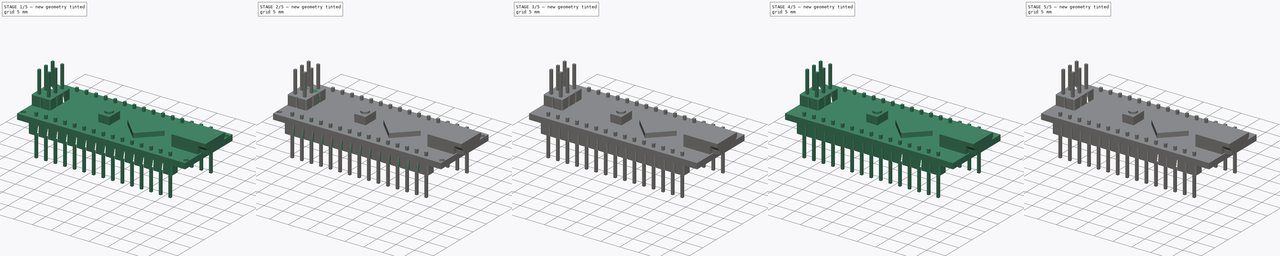
[diagram: build sequence overview — one tinted view per stage of 5, left to right]
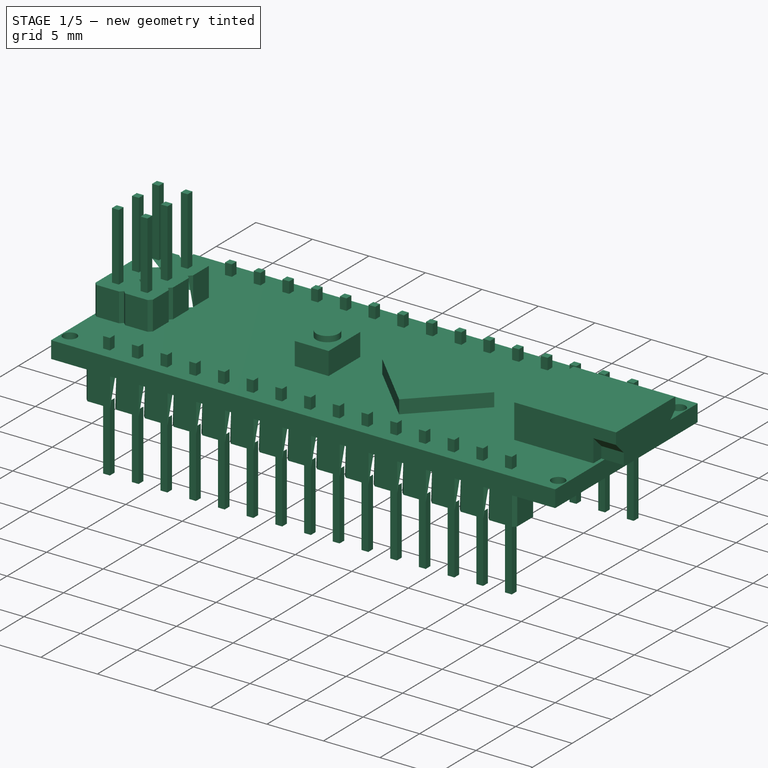
[diagram: stage 1 of 5 — iso view after this stage's code; geometry added in this stage tinted green]
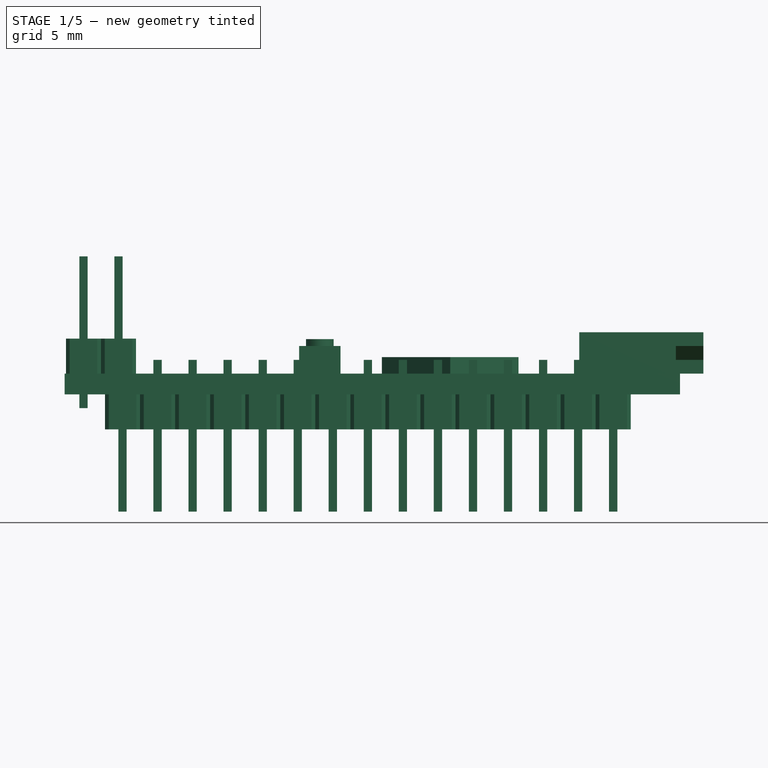
[diagram: stage 1 of 5 — front view after this stage's code; geometry added in this stage tinted green]
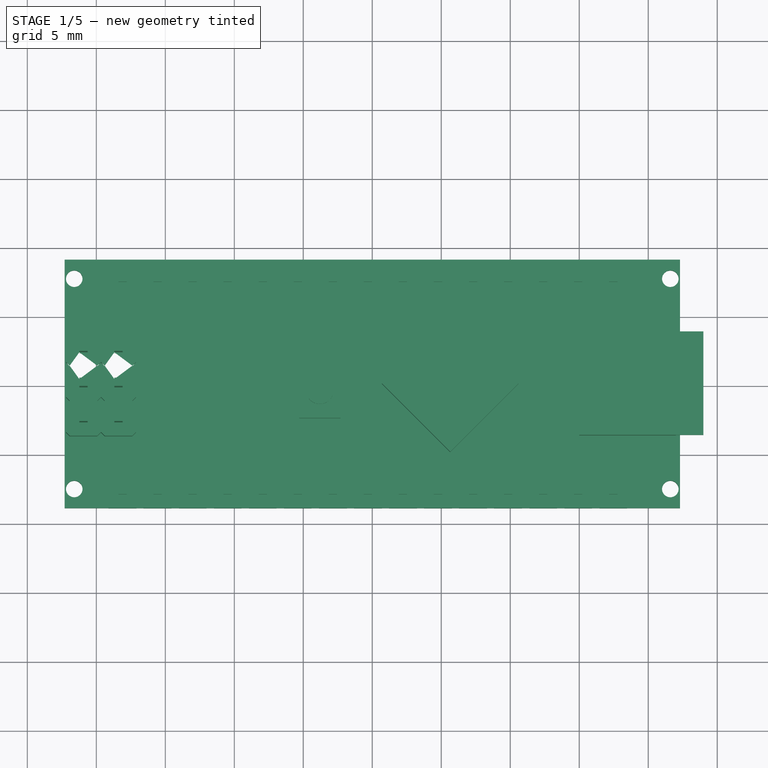
[diagram: stage 1 of 5 — top view after this stage's code; geometry added in this stage tinted green]
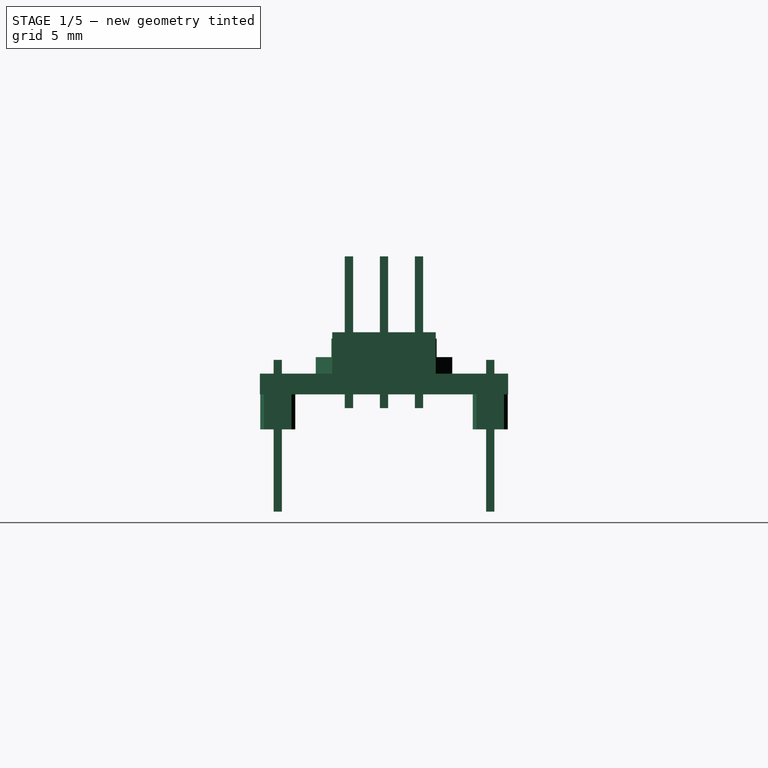
[diagram: stage 1 of 5 — right view after this stage's code; geometry added in this stage tinted green]
FCSTD DOCUMENT  (FreeCAD 1.0R38641 +678 (Git))
Label: arduino_Nano-Rev3_0
License: All rights reserved
LicenseURL: http://en.wikipedia.org/wiki/All_rights_reserved
objects: Sketcher::SketchObject×13, PartDesign::Pad×12, Part::MultiFuse×7, Part::Feature×5, Part::Fuse×4, Part::FeaturePython×3, PartDesign::FeatureBase×1, PartDesign::Pocket×1, PartDesign::Body×1
note: 87 computed .brp shape members not serialized (recipe doc carries the construction recipe); baked Part::Feature solids carry a one-line shape summary decoded from their .brp

FEATURE [Part::Feature] Fusion007
  shape: bbox 2.54 x 2.54 x 11 mm, 20 faces (baked)
FEATURE [Part::FeaturePython] Array002  # Draft array (typed FeaturePython)
  Angle = 360
  ArrayType = 0
  Axis = (0,0,1)
  Base = -> Fusion007
  Center = (0,0,0)
  Count = 15
  Fuse = false
  IntervalAxis = (0,0,0)
  IntervalX = (2.54,0,0)
  IntervalY = (0,1,0)
  IntervalZ = (0,0,0)
  NumberPolar = 1
  NumberX = 15
  NumberY = 0
  NumberZ = 1
FEATURE [Sketcher::SketchObject] Sketch010  label="Btn2"
  ArcFitTolerance = 0
  AttachmentSupport = -> [Pad009]
  FullyConstrained = true
  MakeInternals = false
  MapMode = 5
  Placement = pos=(0,0,3.5) rot=(0,0,1;0rad)
  sketch-geometry (1):
    g0: Circle CenterX=-3.8 CenterY=-0.5 CenterZ=0 NormalX=0 NormalY=0 NormalZ=1 AngleXU=0 Radius=1
  constraints (3):
    c: DistanceY(g-1,g0) = -0.5
    c: DistanceX(g-1,g0) = -3.8
    c: Radius(g0) = 1
FEATURE [PartDesign::Pad] Pad010
  AllowMultiFace = false
  Direction = (0,0,1)
  Length = 0.5
  Length2 = 100
  Placement = pos=(0,0,1.5) rot=(0,0,1;0rad)
  Profile = -> Sketch010
  Refine = true
  Suppressed = false
  Type = 0
FEATURE [Sketcher::SketchObject] Sketch011  label="Ci"
  ArcFitTolerance = 0
  FullyConstrained = true
  MakeInternals = false
  MapMode = 5
  Placement = pos=(0,0,1.5) rot=(0,0,1;0rad)
  sketch-geometry (4):
    g0: LineSegment StartX=5.64975 StartY=4.94975 StartZ=0 EndX=0.7 EndY=0 EndZ=0
    g1: LineSegment StartX=0.7 StartY=0 StartZ=0 EndX=5.64975 EndY=-4.94975 EndZ=0
    g2: LineSegment StartX=5.64975 StartY=-4.94975 StartZ=0 EndX=10.5995 EndY=0 EndZ=0
    g3: LineSegment StartX=10.5995 StartY=0 StartZ=0 EndX=5.64975 EndY=4.94975 EndZ=0
  constraints (11):
    c: Coincident(g0,g1)
    c: Coincident(g1,g2)
    c: Coincident(g2,g3)
    c: Perpendicular(g0,g3) = 4.71239
    c: Perpendicular(g2,g3) = 1.5708
    c: Perpendicular(g1,g2) = 1.5708
    c: Distance(g3) = 7
    c: Distance(g2) = 7
    c: PointOnObject(g0,g-1)
    c: PointOnObject(g2,g-1)
    c: DistanceX(g-1,g0) = 0.7
FEATURE [PartDesign::Pad] Pad011
  AllowMultiFace = false
  Direction = (0,0,1)
  Length = 1.2
  Length2 = 100
  Placement = pos=(0,0,1.5) rot=(0,0,1;0rad)
  Profile = -> Sketch011
  Refine = true
  Suppressed = false
  Type = 0
FEATURE [Part::MultiFuse] Fusion008
  Refine = true
  Shapes = -> [Pad011,Pad010]
FEATURE [Part::Feature] Fusion015
  shape: bbox 46.3 x 18 x 18.5 mm, 701 faces (baked)
FEATURE [PartDesign::FeatureBase] BaseFeature
  BaseFeature = -> Fusion015
  Suppressed = false
FEATURE [Sketcher::SketchObject] Sketch012
  ArcFitTolerance = 1e-06
  AttachmentSupport = -> [BaseFeature]
  FullyConstrained = true
  MakeInternals = false
  MapMode = 5
  Placement = pos=(0,0,1.5) rot=(0,0,1;0rad)
  sketch-geometry (4):
    g0: Circle CenterX=-21.6 CenterY=7.62 CenterZ=0 NormalX=0 NormalY=0 NormalZ=1 AngleXU=0 Radius=0.6
    g1: Circle CenterX=21.6 CenterY=7.62 CenterZ=0 NormalX=0 NormalY=0 NormalZ=1 AngleXU=0 Radius=0.6
    g2: Circle CenterX=21.6 CenterY=-7.62 CenterZ=0 NormalX=0 NormalY=0 NormalZ=1 AngleXU=0 Radius=0.6
    g3: Circle CenterX=-21.6 CenterY=-7.62 CenterZ=0 NormalX=0 NormalY=0 NormalZ=1 AngleXU=0 Radius=0.6
  constraints (9):
    c: Symmetric(g3,g2,g-2)
    c: Symmetric(g0,g3,g-1)
    c: Symmetric(g0,g1,g-2)
    c: Equal(g0,g1)
    c: Equal(g1,g2)
    c: Equal(g2,g3)
    c: Diameter(g0) = 1.2
    c: DistanceX(g0,g1) = 43.2
    c: DistanceY(g3,g0) = 15.24
FEATURE [PartDesign::Pocket] Pocket
  BaseFeature = -> BaseFeature
  Direction = (0,0,-1)
  Length = 5
  Length2 = 5
  Profile = -> Sketch012
  ReferenceAxis = -> Sketch012 [N_Axis]
  Refine = true
  Suppressed = false
  Type = 0
FEATURE [PartDesign::Body] Body  label="Body_arduino_nano"
  AllowCompound = false
  BaseFeature = -> Fusion015
  Group = -> [BaseFeature,Sketch012,Pocket]
  Origin = -> Origin
  Tip = -> Pocket
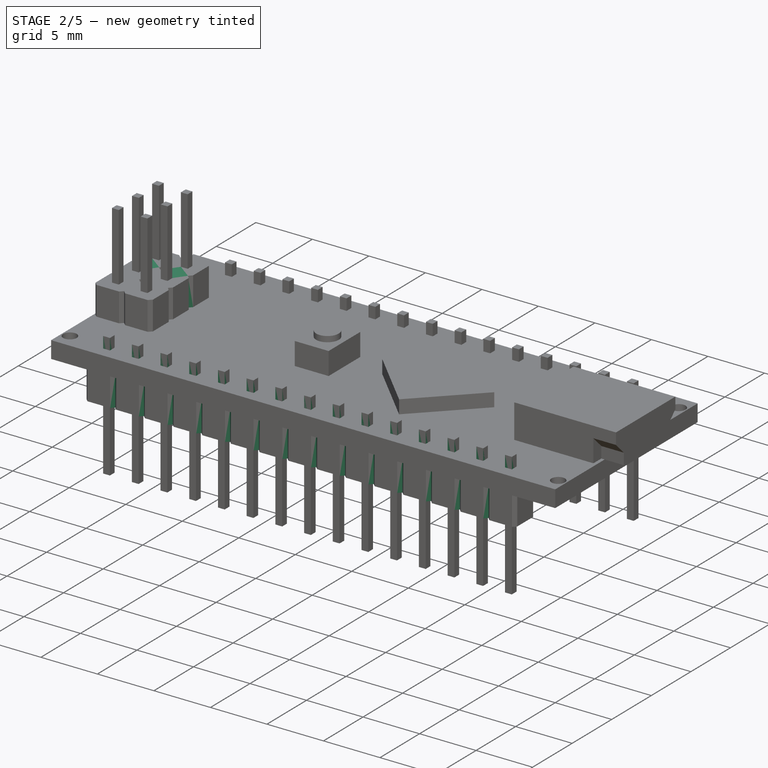
[diagram: stage 2 of 5 — iso view after this stage's code; geometry added in this stage tinted green]
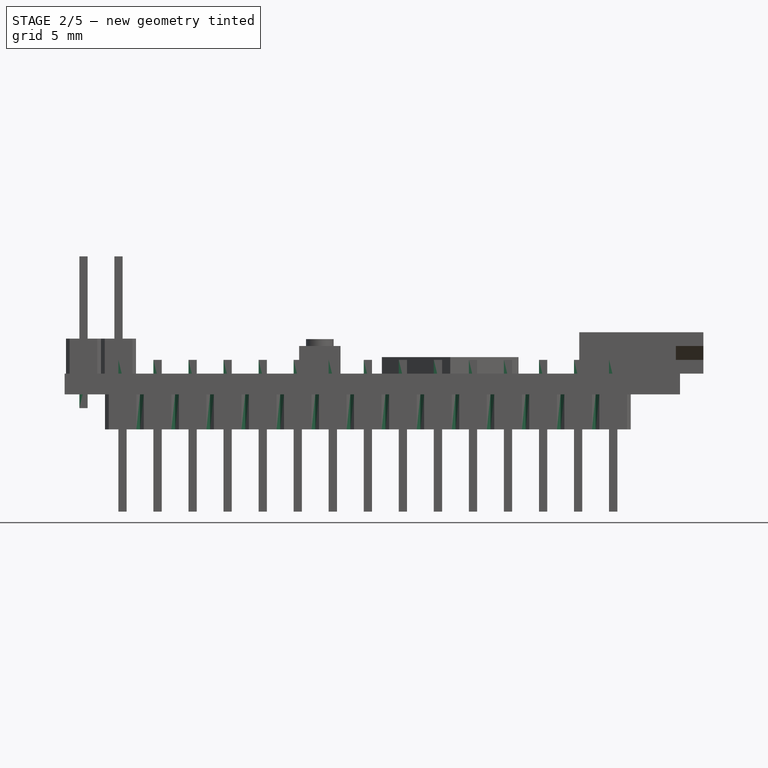
[diagram: stage 2 of 5 — front view after this stage's code; geometry added in this stage tinted green]
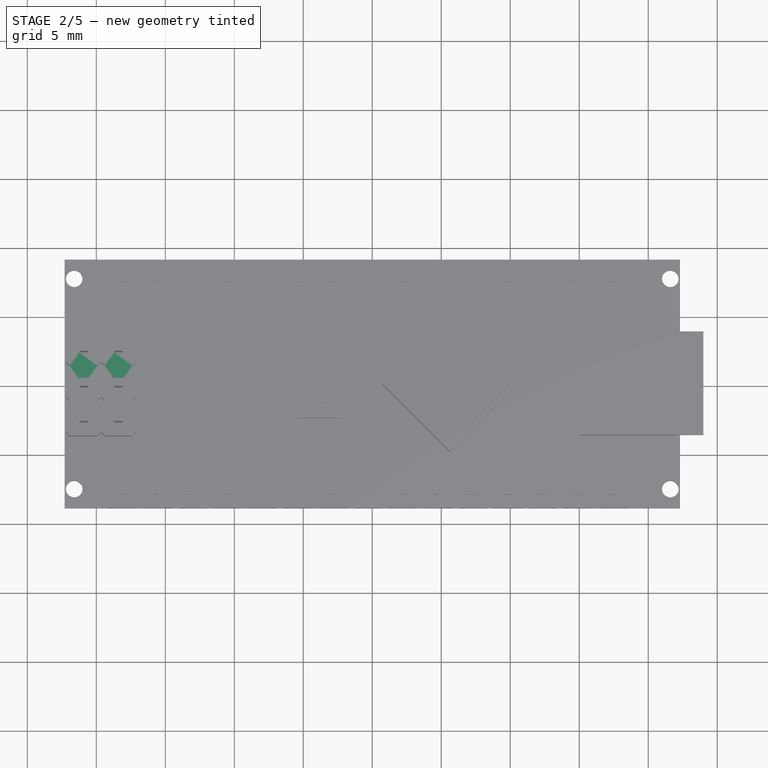
[diagram: stage 2 of 5 — top view after this stage's code; geometry added in this stage tinted green]
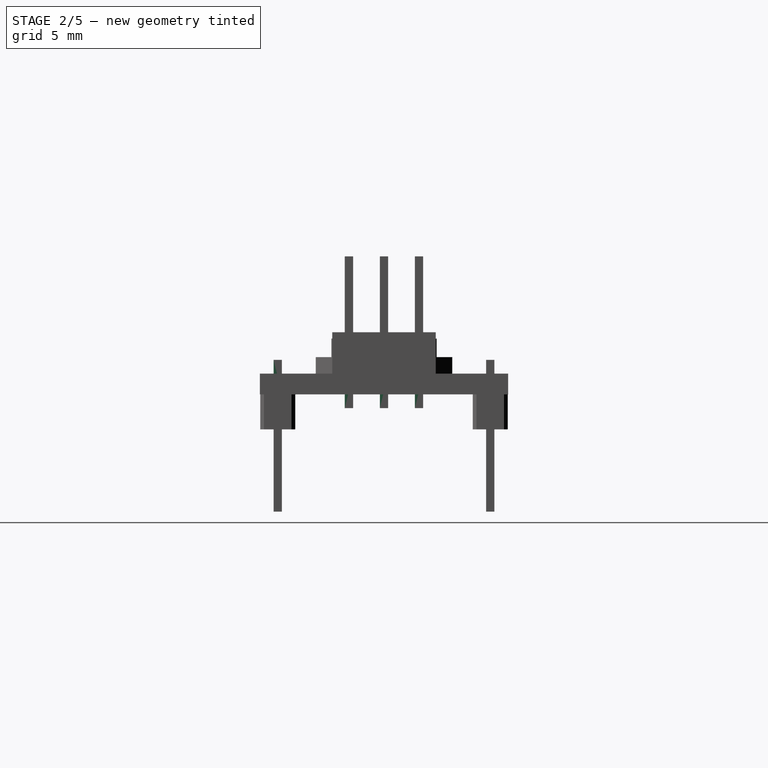
[diagram: stage 2 of 5 — right view after this stage's code; geometry added in this stage tinted green]
FEATURE [Part::Feature] Fusion003
  shape: bbox 5.08 x 2.54 x 11 mm, 36 faces (baked)
FEATURE [Part::FeaturePython] Array  # Draft array (typed FeaturePython)
  Angle = 360
  ArrayType = 0
  Axis = (0,0,1)
  Base = -> Fusion003
  Center = (0,0,0)
  Count = 3
  Fuse = false
  IntervalAxis = (0,0,0)
  IntervalX = (1,0,0)
  IntervalY = (0,2.54,0)
  IntervalZ = (0,0,0)
  NumberPolar = 1
  NumberX = 1
  NumberY = 3
  NumberZ = 1
FEATURE [Part::Feature] Fusion005
  shape: bbox 2.54 x 2.54 x 11 mm, 20 faces (baked)
FEATURE [Part::FeaturePython] Array001  # Draft array (typed FeaturePython)
  Angle = 360
  ArrayType = 0
  Axis = (0,0,1)
  Base = -> Fusion005
  Center = (0,0,0)
  Count = 15
  Fuse = false
  IntervalAxis = (0,0,0)
  IntervalX = (2.54,0,0)
  IntervalY = (0,1,0)
  IntervalZ = (0,0,0)
  NumberPolar = 1
  NumberX = 15
  NumberY = 1
  NumberZ = 1
FEATURE [Part::MultiFuse] Fusion009
  Refine = true
  Shapes = -> [Fusion008,Array002]
FEATURE [Part::MultiFuse] Fusion010
  Refine = true
  Shapes = -> [Fusion009,Array001]
FEATURE [Part::MultiFuse] Fusion011
  Refine = true
  Shapes = -> [Fusion010,Array]
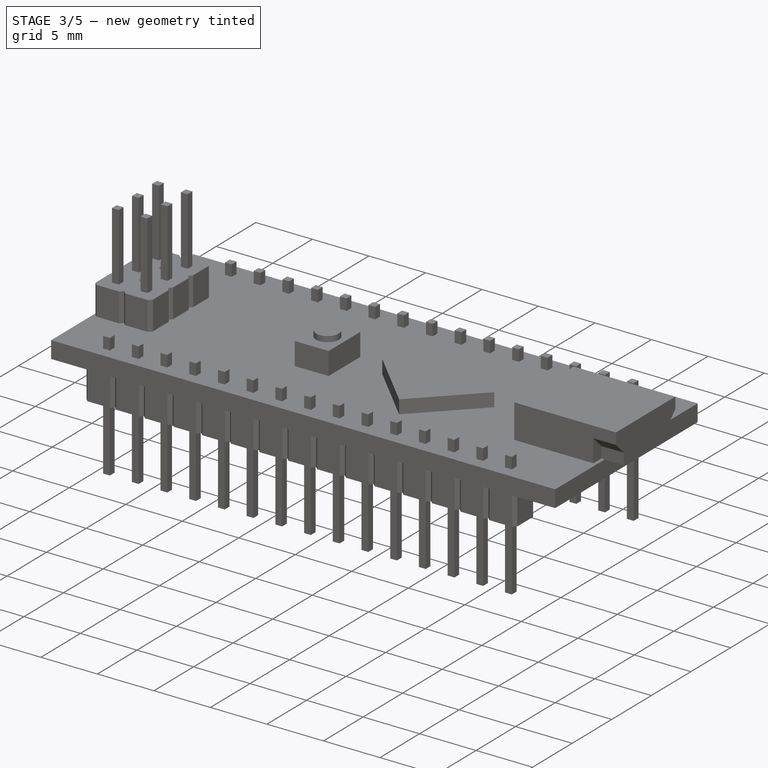
[diagram: stage 3 of 5 — iso view after this stage's code; geometry added in this stage tinted green]
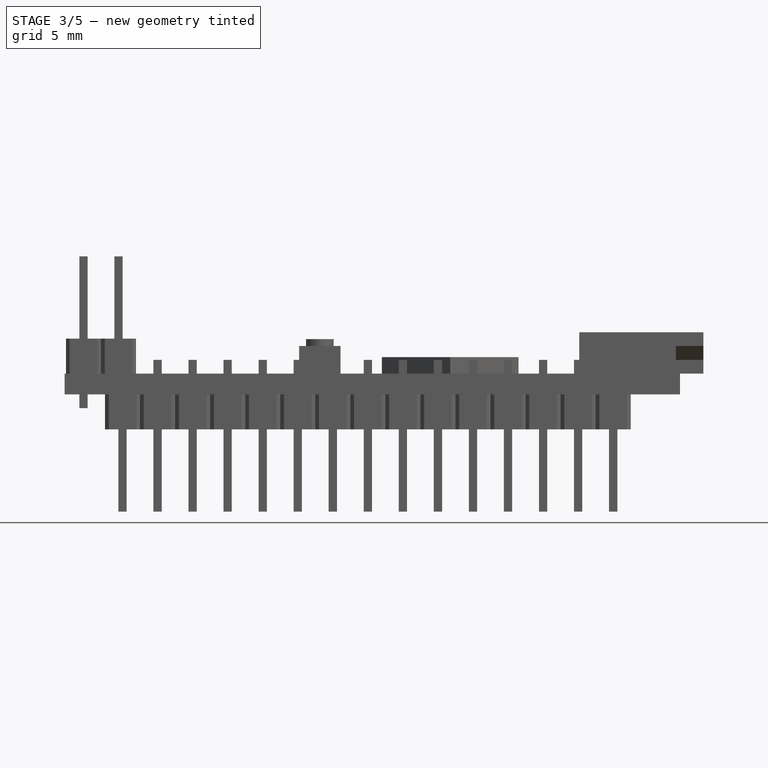
[diagram: stage 3 of 5 — front view after this stage's code; geometry added in this stage tinted green]
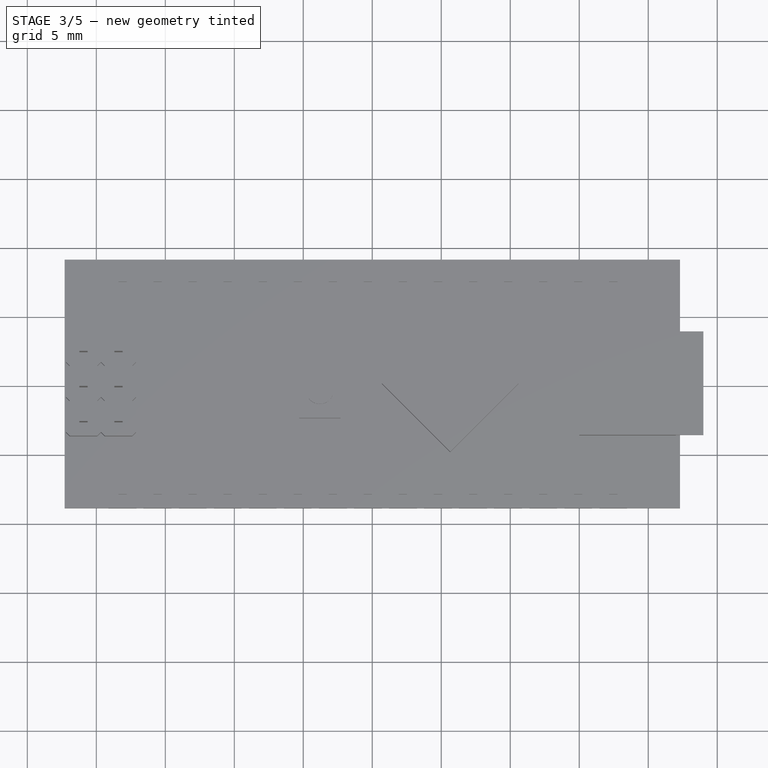
[diagram: stage 3 of 5 — top view after this stage's code; geometry added in this stage tinted green]
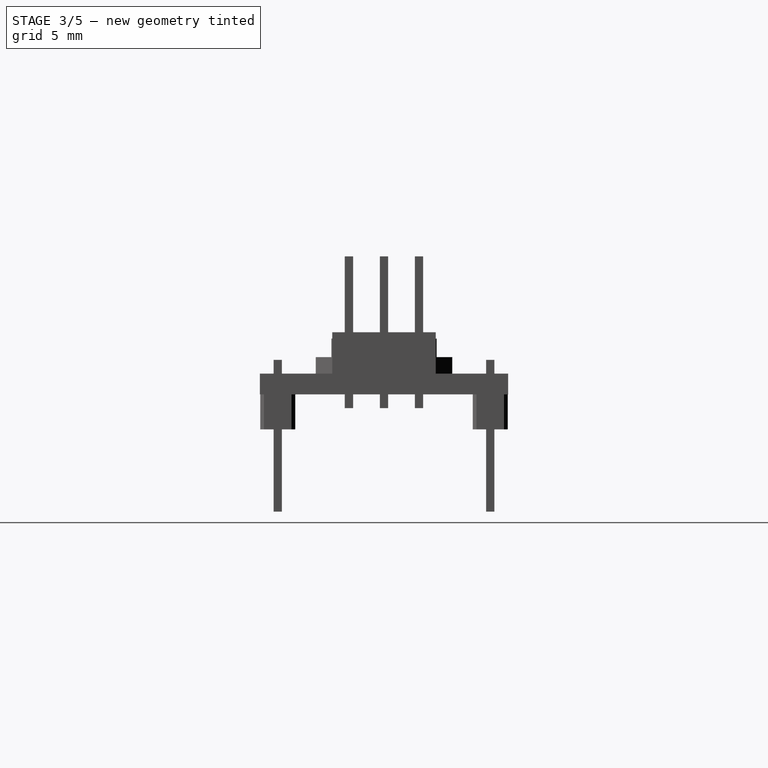
[diagram: stage 3 of 5 — right view after this stage's code; geometry added in this stage tinted green]
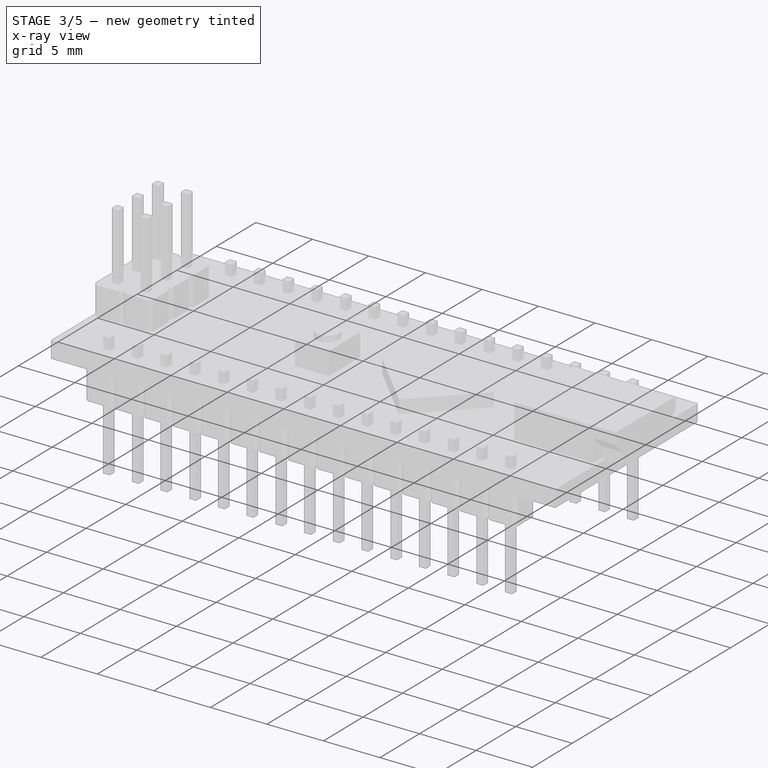
[diagram: stage 3 of 5 — x-ray composite at the iso view; earlier geometry ghosted, this stage's added geometry solid]
FEATURE [Sketcher::SketchObject] Sketch  label="CI"
  ArcFitTolerance = 0
  FullyConstrained = true
  MakeInternals = false
  MapMode = 5
  sketch-geometry (4):
    g0: LineSegment StartX=-22.3 StartY=9 StartZ=0 EndX=22.3 EndY=9 EndZ=0
    g1: LineSegment StartX=22.3 StartY=9 StartZ=0 EndX=22.3 EndY=-9 EndZ=0
    g2: LineSegment StartX=22.3 StartY=-9 StartZ=0 EndX=-22.3 EndY=-9 EndZ=0
    g3: LineSegment StartX=-22.3 StartY=-9 StartZ=0 EndX=-22.3 EndY=9 EndZ=0
  constraints (12):
    c: Coincident(g0,g1)
    c: Coincident(g1,g2)
    c: Coincident(g2,g3)
    c: Coincident(g3,g0)
    c: Horizontal(g0)
    c: Horizontal(g2)
    c: Vertical(g1)
    c: Vertical(g3)
    c: DistanceY(g3) = 18
    c: DistanceX(g0) = 44.6
    c: DistanceX(g0) = -22.3
    c: DistanceY(g0) = 9
FEATURE [PartDesign::Pad] Pad
  AllowMultiFace = false
  Direction = (0,0,1)
  Length = 1.5
  Length2 = 100
  Profile = -> Sketch
  Refine = true
  Suppressed = false
  Type = 0
FEATURE [Part::Feature] Fusion001
  shape: bbox 9 x 7.5 x 3 mm, 12 faces (baked)
FEATURE [Sketcher::SketchObject] Sketch003  label="Connecteur 1"
  ArcFitTolerance = 0
  FullyConstrained = true
  MakeInternals = false
  MapMode = 5
  Placement = pos=(0,0,1.5) rot=(0,0,1;0rad)
  sketch-geometry (14):
    g0: LineSegment StartX=-21.93 StartY=-3.81 StartZ=0 EndX=-19.93 EndY=-3.81 EndZ=0
    g1: LineSegment StartX=-19.93 StartY=-3.81 StartZ=0 EndX=-19.66 EndY=-3.54 EndZ=0
    g2: LineSegment StartX=-19.66 StartY=-3.54 StartZ=0 EndX=-19.39 EndY=-3.81 EndZ=0
    g3: LineSegment StartX=-19.39 StartY=-3.81 StartZ=0 EndX=-17.39 EndY=-3.81 EndZ=0
    g4: LineSegment StartX=-17.39 StartY=-3.81 StartZ=0 EndX=-17.12 EndY=-3.54 EndZ=0
    g5: LineSegment StartX=-17.12 StartY=-3.54 StartZ=0 EndX=-17.12 EndY=-1.54 EndZ=0
    g6: LineSegment StartX=-17.12 StartY=-1.54 StartZ=0 EndX=-17.39 EndY=-1.27 EndZ=0
    g7: LineSegment StartX=-17.39 StartY=-1.27 StartZ=0 EndX=-19.39 EndY=-1.27 EndZ=0
    g8: LineSegment StartX=-19.39 StartY=-1.27 StartZ=0 EndX=-19.66 EndY=-1.54 EndZ=0
    g9: LineSegment StartX=-19.66 StartY=-1.54 StartZ=0 EndX=-19.93 EndY=-1.27 EndZ=0
    g10: LineSegment StartX=-19.93 StartY=-1.27 StartZ=0 EndX=-21.93 EndY=-1.27 EndZ=0
    g11: LineSegment StartX=-21.93 StartY=-1.27 StartZ=0 EndX=-22.2 EndY=-1.54 EndZ=0
    g12: LineSegment StartX=-22.2 StartY=-1.54 StartZ=0 EndX=-22.2 EndY=-3.54 EndZ=0
    g13: LineSegment StartX=-22.2 StartY=-3.54 StartZ=0 EndX=-21.93 EndY=-3.81 EndZ=0
  constraints (42):
    c: Horizontal(g0)
    c: Coincident(g0,g1)
    c: Coincident(g1,g2)
    c: Coincident(g2,g3)
    c: Horizontal(g3)
    c: Coincident(g3,g4)
    c: Coincident(g4,g5)
    c: Vertical(g5)
    c: Coincident(g5,g6)
    c: Coincident(g6,g7)
    c: Horizontal(g7)
    c: Coincident(g7,g8)
    c: Coincident(g8,g9)
    c: Coincident(g9,g10)
    c: Horizontal(g10)
    c: Coincident(g10,g11)
    c: Coincident(g11,g12)
    c: Vertical(g12)
    c: Coincident(g12,g13)
    c: Coincident(g0,g13)
    c: DistanceX(g12,g1) = 2.54
    c: DistanceX(g0) = 2
    c: DistanceX(g3) = 2
    c: DistanceX(g1,g4) = 2.54
    c: DistanceY(g3,g6) = 2.54
    c: DistanceY(g5) = 2
    c: DistanceX(g7) = -2
    c: DistanceX(g8,g5) = 2.54
    c: DistanceX(g10) = -2
    c: DistanceY(g0,g10) = 2.54
    c: DistanceY(g12) = -2
    c: DistanceY(g13) = -0.27
    c: DistanceX(g13) = 0.27
    c: DistanceX(g11) = -0.27
    c: DistanceY(g9) = 0.27
    c: DistanceX(g8) = -0.27
    c: DistanceY(g8) = -0.27
    c: DistanceY(g6) = 0.27
    c: DistanceY(g1) = 0.27
    c: DistanceX(g2) = 0.27
    c: DistanceX(g-1,g11) = -22.2
    c: DistanceY(g-1,g0) = -3.81
FEATURE [PartDesign::Pad] Pad003
  AllowMultiFace = false
  Direction = (0,0,1)
  Length = 2.54
  Length2 = 100
  Placement = pos=(0,0,1.5) rot=(0,0,1;0rad)
  Profile = -> Sketch003
  Refine = true
  Suppressed = false
  Type = 0
FEATURE [Sketcher::SketchObject] Sketch004  label="Connecteur 2"
  ArcFitTolerance = 0
  FullyConstrained = true
  MakeInternals = false
  MapMode = 5
  Placement = pos=(0,0,-1) rot=(0,0,1;0rad)
  sketch-geometry (9):
    g0: LineSegment StartX=-21.23 StartY=-2.24 StartZ=0 EndX=-20.63 EndY=-2.24 EndZ=0
    g1: LineSegment StartX=-20.63 StartY=-2.24 StartZ=0 EndX=-20.63 EndY=-2.84 EndZ=0
    g2: LineSegment StartX=-20.63 StartY=-2.84 StartZ=0 EndX=-21.23 EndY=-2.84 EndZ=0
    g3: LineSegment StartX=-21.23 StartY=-2.84 StartZ=0 EndX=-21.23 EndY=-2.24 EndZ=0
    g4: LineSegment StartX=-18.69 StartY=-2.24 StartZ=0 EndX=-18.09 EndY=-2.24 EndZ=0
    g5: LineSegment StartX=-18.09 StartY=-2.24 StartZ=0 EndX=-18.09 EndY=-2.84 EndZ=0
    g6: LineSegment StartX=-18.09 StartY=-2.84 StartZ=0 EndX=-18.69 EndY=-2.84 EndZ=0
    g7: LineSegment StartX=-18.69 StartY=-2.84 StartZ=0 EndX=-18.69 EndY=-2.24 EndZ=0
    g8: LineSegment [constr] StartX=-20.93 StartY=-2.54 StartZ=0 EndX=-18.39 EndY=-2.54 EndZ=0
  constraints (28):
    c: Coincident(g0,g1)
    c: Coincident(g1,g2)
    c: Coincident(g2,g3)
    c: Coincident(g3,g0)
    c: Horizontal(g0)
    c: Horizontal(g2)
    c: Vertical(g1)
    c: Vertical(g3)
    c: Coincident(g4,g5)
    c: Coincident(g5,g6)
    c: Coincident(g6,g7)
    c: Coincident(g7,g4)
    c: Horizontal(g4)
    c: Horizontal(g6)
    c: Vertical(g5)
    c: Vertical(g7)
    c: DistanceX(g0) = 0.6
    c: DistanceY(g1) = -0.6
    c: DistanceX(g4) = 0.6
    c: DistanceY(g5) = -0.6
    c: Horizontal(g8)
    c: DistanceX(g0,g8) = -0.3
    c: DistanceY(g8,g0) = 0.3
    c: DistanceX(g8,g4) = 0.3
    c: DistanceY(g8,g4) = 0.3
    c: DistanceX(g-1,g8) = -20.93
    c: DistanceY(g-1,g8) = -2.54
    c: DistanceX(g8) = 2.54
FEATURE [PartDesign::Pad] Pad004
  AllowMultiFace = false
  Direction = (0,0,1)
  Length = 11
  Length2 = 100
  Placement = pos=(0,0,-1) rot=(0,0,1;0rad)
  Profile = -> Sketch004
  Refine = true
  Suppressed = false
  Type = 0
FEATURE [Part::Fuse] Fusion002
  Base = -> Pad003
  Refine = true
  Tool = -> Pad004
FEATURE [Part::MultiFuse] Fusion012
  Refine = true
  Shapes = -> [Fusion011,Fusion002]
FEATURE [Part::MultiFuse] Fusion013
  Refine = true
  Shapes = -> [Fusion012,Fusion001]
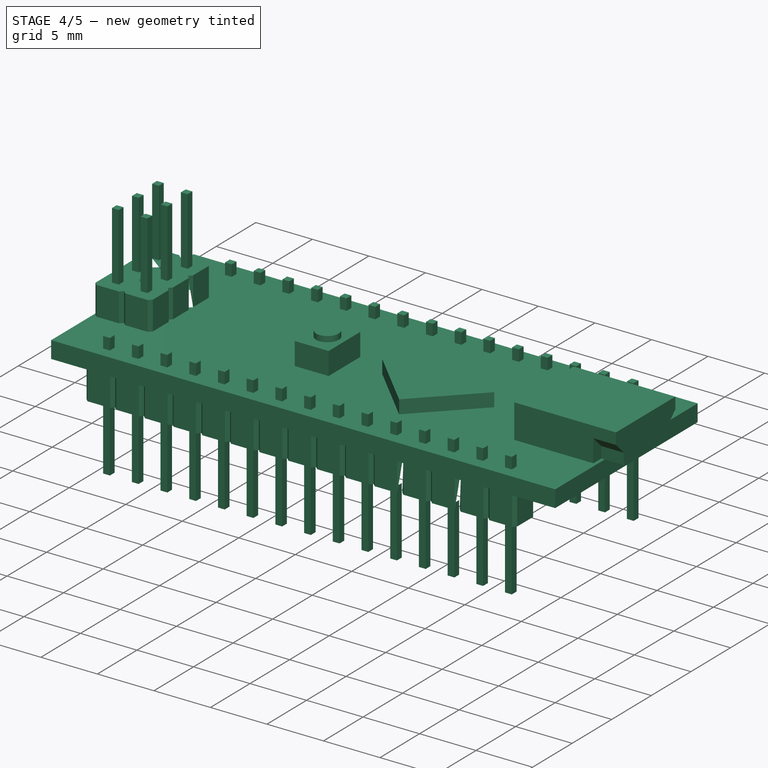
[diagram: stage 4 of 5 — iso view after this stage's code; geometry added in this stage tinted green]
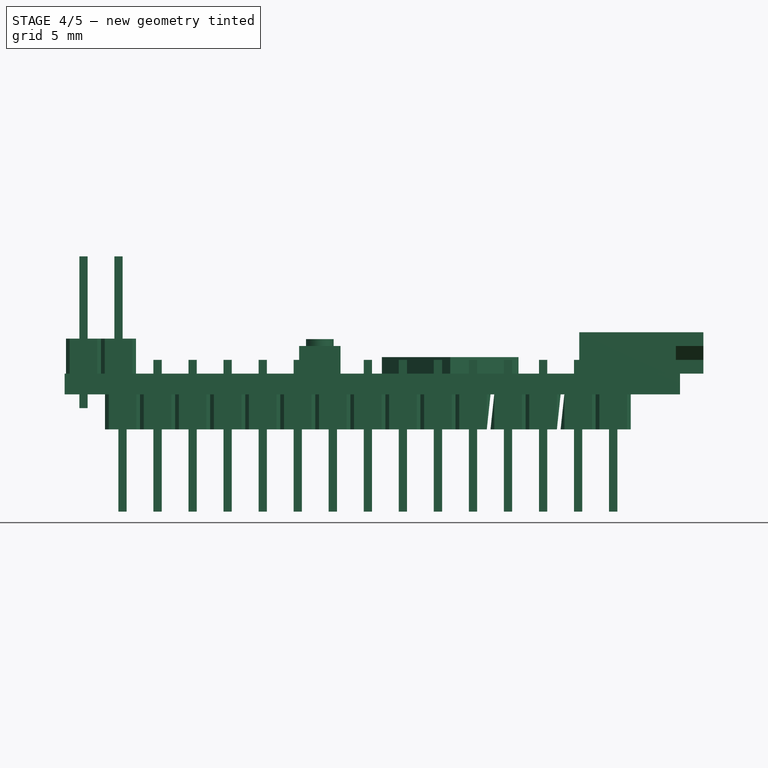
[diagram: stage 4 of 5 — front view after this stage's code; geometry added in this stage tinted green]
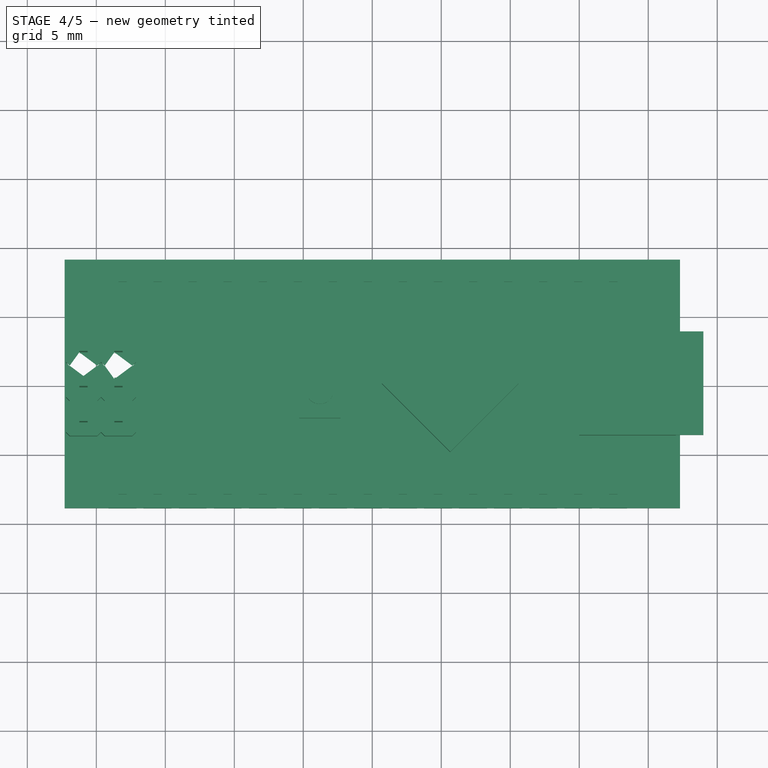
[diagram: stage 4 of 5 — top view after this stage's code; geometry added in this stage tinted green]
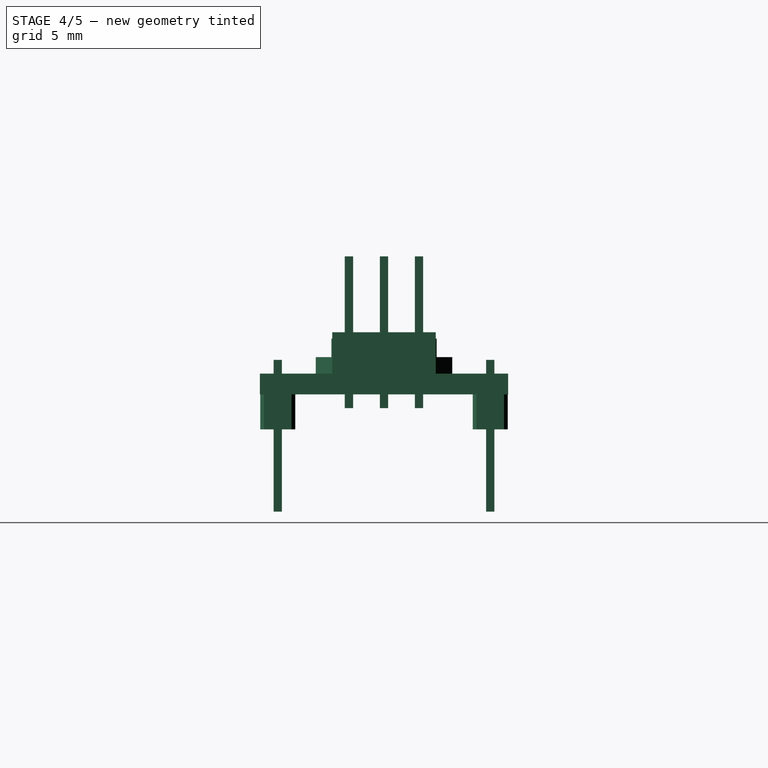
[diagram: stage 4 of 5 — right view after this stage's code; geometry added in this stage tinted green]
FEATURE [Sketcher::SketchObject] Sketch007  label="Connecteur 21"
  ArcFitTolerance = 0
  FullyConstrained = true
  MakeInternals = false
  MapMode = 5
  sketch-geometry (9):
    g0: LineSegment StartX=-19.1 StartY=6.43 StartZ=0 EndX=-17.1 EndY=6.43 EndZ=0
    g1: LineSegment StartX=-17.1 StartY=6.43 StartZ=0 EndX=-16.83 EndY=6.7 EndZ=0
    g2: LineSegment StartX=-16.83 StartY=8.7 StartZ=0 EndX=-17.1 EndY=8.97 EndZ=0
    g3: LineSegment StartX=-17.1 StartY=8.97 StartZ=0 EndX=-19.1 EndY=8.97 EndZ=0
    g4: LineSegment StartX=-19.1 StartY=8.97 StartZ=0 EndX=-19.37 EndY=8.7 EndZ=0
    g5: LineSegment StartX=-19.37 StartY=8.7 StartZ=0 EndX=-19.37 EndY=6.7 EndZ=0
    g6: LineSegment StartX=-19.37 StartY=6.7 StartZ=0 EndX=-19.1 EndY=6.43 EndZ=0
    g7: LineSegment StartX=-16.83 StartY=8.7 StartZ=0 EndX=-16.83 EndY=6.7 EndZ=0
    g8: GeomPoint [constr] X=-18.1 Y=7.7 Z=0
  constraints (26):
    c: Horizontal(g0)
    c: Coincident(g0,g1)
    c: Coincident(g2,g3)
    c: Horizontal(g3)
    c: Coincident(g3,g4)
    c: Coincident(g4,g5)
    c: Vertical(g5)
    c: Coincident(g5,g6)
    c: Coincident(g0,g6)
    c: DistanceX(g5,g1) = 2.54
    c: DistanceX(g0) = 2
    c: DistanceX(g3) = -2
    c: DistanceY(g0,g3) = 2.54
    c: DistanceY(g5) = -2
    c: DistanceY(g6) = -0.27
    c: DistanceX(g6) = 0.27
    c: DistanceX(g4) = -0.27
    c: DistanceY(g2) = 0.27
    c: DistanceY(g1) = 0.27
    c: Vertical(g7)
    c: Coincident(g2,g7)
    c: Coincident(g1,g7)
    c: DistanceX(g8,g4) = -1.27
    c: DistanceY(g8,g2) = 1.27
    c: DistanceX(g-1,g8) = -18.1
    c: DistanceY(g-1,g8) = 7.7
FEATURE [Sketcher::SketchObject] Sketch008  label="Connecteur 22"
  ArcFitTolerance = 0
  FullyConstrained = true
  MakeInternals = false
  MapMode = 5
  Placement = pos=(0,0,2.5) rot=(0,0,1;0rad)
  sketch-geometry (5):
    g0: LineSegment StartX=-18.4 StartY=8 StartZ=0 EndX=-17.8 EndY=8 EndZ=0
    g1: LineSegment StartX=-17.8 StartY=8 StartZ=0 EndX=-17.8 EndY=7.4 EndZ=0
    g2: LineSegment StartX=-17.8 StartY=7.4 StartZ=0 EndX=-18.4 EndY=7.4 EndZ=0
    g3: LineSegment StartX=-18.4 StartY=7.4 StartZ=0 EndX=-18.4 EndY=8 EndZ=0
    g4: GeomPoint [constr] X=-18.1 Y=7.7 Z=0
  constraints (14):
    c: Coincident(g0,g1)
    c: Coincident(g1,g2)
    c: Coincident(g2,g3)
    c: Coincident(g3,g0)
    c: Horizontal(g0)
    c: Horizontal(g2)
    c: Vertical(g1)
    c: Vertical(g3)
    c: DistanceX(g0) = 0.6
    c: DistanceY(g1) = -0.6
    c: DistanceY(g4,g0) = 0.3
    c: DistanceX(g0,g4) = -0.3
    c: DistanceY(g-1,g4) = 7.7
    c: DistanceX(g-1,g4) = -18.1
FEATURE [PartDesign::Pad] Pad007
  AllowMultiFace = false
  Direction = (0,0,1)
  Length = 2.54
  Length2 = 100
  Profile = -> Sketch007
  Refine = true
  Reversed = true
  Suppressed = false
  Type = 0
FEATURE [PartDesign::Pad] Pad008
  AllowMultiFace = false
  Direction = (0,0,1)
  Length = 11
  Length2 = 100
  Placement = pos=(0,0,2.5) rot=(0,0,1;0rad)
  Profile = -> Sketch008
  Refine = true
  Reversed = true
  Suppressed = false
  Type = 0
FEATURE [Part::Fuse] Fusion006
  Base = -> Pad007
  Refine = true
  Tool = -> Pad008
FEATURE [Sketcher::SketchObject] Sketch009  label="Btn 1"
  ArcFitTolerance = 0
  FullyConstrained = true
  MakeInternals = false
  MapMode = 5
  Placement = pos=(0,0,1.5) rot=(0,0,1;0rad)
  sketch-geometry (5):
    g0: LineSegment StartX=-5.3 StartY=1.5 StartZ=0 EndX=-2.3 EndY=1.5 EndZ=0
    g1: LineSegment StartX=-2.3 StartY=1.5 StartZ=0 EndX=-2.3 EndY=-2.5 EndZ=0
    g2: LineSegment StartX=-2.3 StartY=-2.5 StartZ=0 EndX=-5.3 EndY=-2.5 EndZ=0
    g3: LineSegment StartX=-5.3 StartY=-2.5 StartZ=0 EndX=-5.3 EndY=1.5 EndZ=0
    g4: GeomPoint [constr] X=-3.8 Y=-0.5 Z=0
  constraints (14):
    c: Coincident(g0,g1)
    c: Coincident(g1,g2)
    c: Coincident(g2,g3)
    c: Coincident(g3,g0)
    c: Horizontal(g0)
    c: Horizontal(g2)
    c: Vertical(g1)
    c: Vertical(g3)
    c: DistanceX(g0) = 3
    c: DistanceY(g1) = -4
    c: DistanceY(g4,g0) = 2
    c: DistanceX(g4,g0) = 1.5
    c: DistanceX(g-1,g4) = -3.8
    c: DistanceY(g-1,g4) = -0.5
FEATURE [PartDesign::Pad] Pad009
  AllowMultiFace = false
  Direction = (0,0,1)
  Length = 2
  Length2 = 100
  Placement = pos=(0,0,1.5) rot=(0,0,1;0rad)
  Profile = -> Sketch009
  Refine = true
  Suppressed = false
  Type = 0
FEATURE [Part::MultiFuse] Fusion014
  Refine = true
  Shapes = -> [Fusion013,Pad]
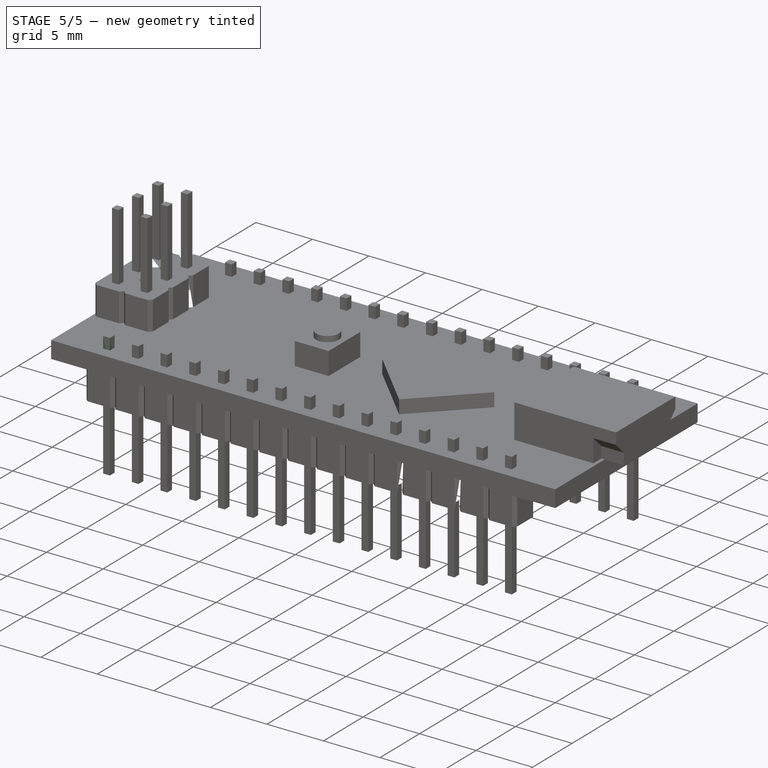
[diagram: stage 5 of 5 — iso view after this stage's code; geometry added in this stage tinted green]
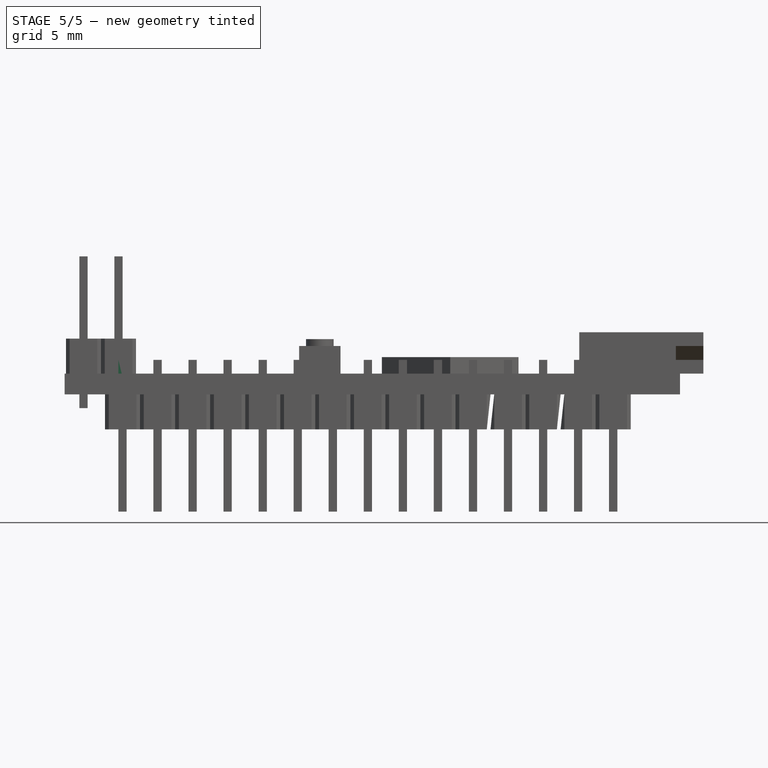
[diagram: stage 5 of 5 — front view after this stage's code; geometry added in this stage tinted green]
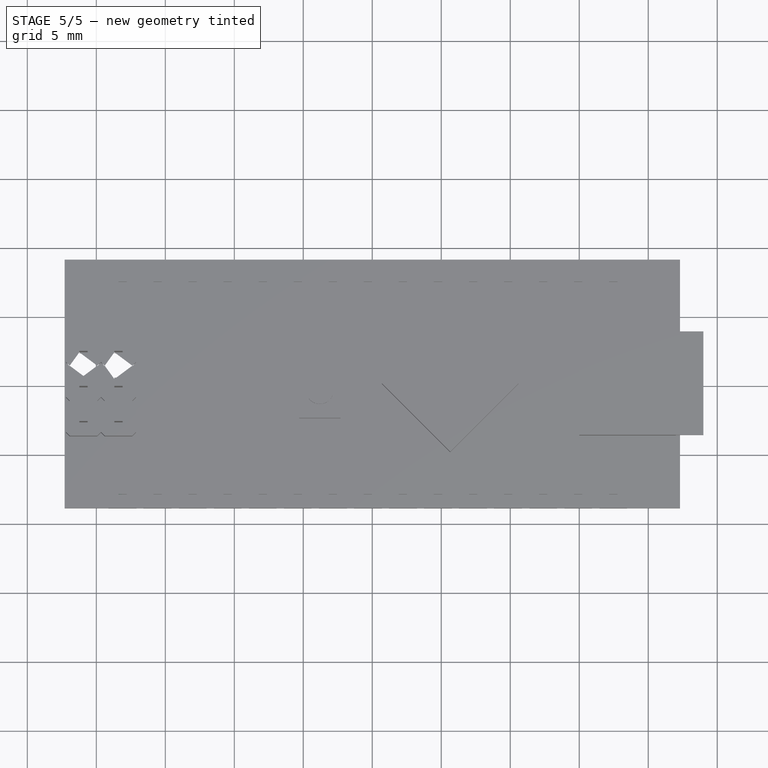
[diagram: stage 5 of 5 — top view after this stage's code; geometry added in this stage tinted green]
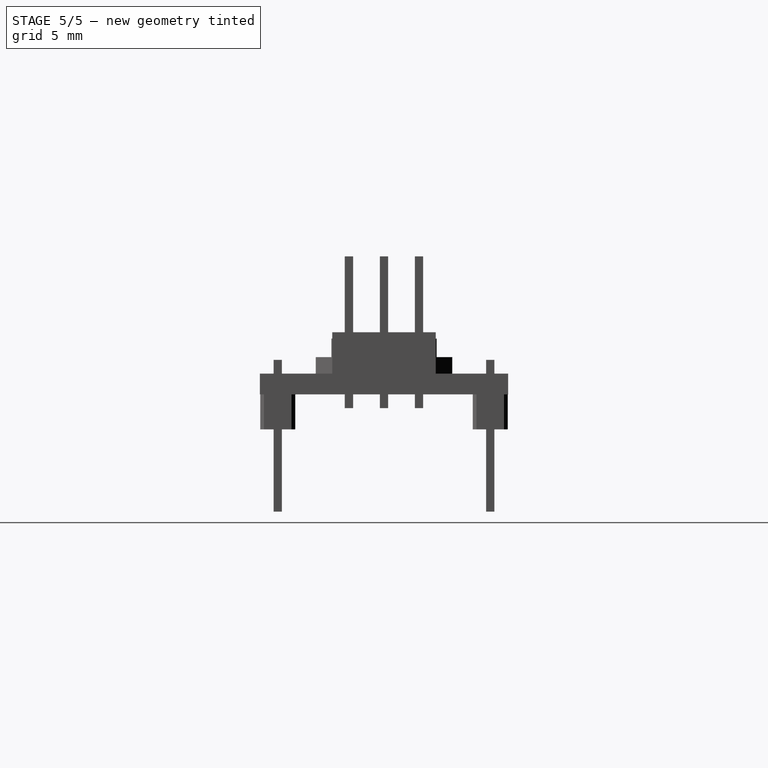
[diagram: stage 5 of 5 — right view after this stage's code; geometry added in this stage tinted green]
FEATURE [Sketcher::SketchObject] Sketch001  label="USB1"
  ArcFitTolerance = 0
  FullyConstrained = true
  MakeInternals = false
  MapMode = 5
  Placement = pos=(24,0,0) rot=(0.57735,0.57735,0.57735;2.0944rad)
  sketch-geometry (8):
    g0: LineSegment StartX=-2.75 StartY=1.5 StartZ=0 EndX=2.75 EndY=1.5 EndZ=0
    g1: LineSegment StartX=2.75 StartY=1.5 StartZ=0 EndX=2.75 EndY=2.5 EndZ=0
    g2: LineSegment StartX=2.75 StartY=2.5 StartZ=0 EndX=3.75 EndY=3.5 EndZ=0
    g3: LineSegment StartX=3.75 StartY=3.5 StartZ=0 EndX=3.75 EndY=4.5 EndZ=0
    g4: LineSegment StartX=3.75 StartY=4.5 StartZ=0 EndX=-3.75 EndY=4.5 EndZ=0
    g5: LineSegment StartX=-3.75 StartY=4.5 StartZ=0 EndX=-3.75 EndY=3.5 EndZ=0
    g6: LineSegment StartX=-3.75 StartY=3.5 StartZ=0 EndX=-2.75 EndY=2.5 EndZ=0
    g7: LineSegment StartX=-2.75 StartY=2.5 StartZ=0 EndX=-2.75 EndY=1.5 EndZ=0
  constraints (24):
    c: Horizontal(g0)
    c: Coincident(g0,g1)
    c: Vertical(g1)
    c: Coincident(g1,g2)
    c: Coincident(g2,g3)
    c: Vertical(g3)
    c: Coincident(g3,g4)
    c: Horizontal(g4)
    c: Coincident(g4,g5)
    c: Coincident(g5,g6)
    c: Coincident(g6,g7)
    c: Vertical(g5)
    c: Coincident(g0,g7)
    c: Vertical(g7)
    c: DistanceY(g-1,g0) = 1.5
    c: DistanceX(g0) = 5.5
    c: DistanceX(g-1,g0) = -2.75
    c: DistanceY(g1) = 1
    c: DistanceY(g7) = -1
    c: DistanceX(g4) = -7.5
    c: DistanceX(g-1,g4) = -3.75
    c: DistanceY(g2) = 1
    c: DistanceY(g6) = -1
    c: DistanceY(g3) = 1
FEATURE [PartDesign::Pad] Pad001
  AllowMultiFace = false
  Direction = (1,1e-16,-1e-16)
  Length = 2
  Length2 = 100
  Placement = pos=(24,0,0) rot=(0.57735,0.57735,0.57735;2.0944rad)
  Profile = -> Sketch001
  Refine = true
  Reversed = true
  Suppressed = false
  Type = 0
FEATURE [Sketcher::SketchObject] Sketch002  label="USB2"
  ArcFitTolerance = 0
  FullyConstrained = true
  MakeInternals = false
  MapMode = 5
  Placement = pos=(22,0,0) rot=(0.57735,0.57735,0.57735;2.0944rad)
  sketch-geometry (4):
    g0: LineSegment StartX=-3.75 StartY=1.5 StartZ=0 EndX=3.75 EndY=1.5 EndZ=0
    g1: LineSegment StartX=3.75 StartY=1.5 StartZ=0 EndX=3.75 EndY=4.5 EndZ=0
    g2: LineSegment StartX=3.75 StartY=4.5 StartZ=0 EndX=-3.75 EndY=4.5 EndZ=0
    g3: LineSegment StartX=-3.75 StartY=4.5 StartZ=0 EndX=-3.75 EndY=1.5 EndZ=0
  constraints (12):
    c: Horizontal(g0)
    c: Vertical(g1)
    c: Coincident(g1,g2)
    c: Horizontal(g2)
    c: Coincident(g2,g3)
    c: Vertical(g3)
    c: DistanceY(g-1,g0) = 1.5
    c: DistanceX(g2) = -7.5
    c: DistanceX(g-1,g2) = -3.75
    c: Coincident(g0,g3)
    c: Coincident(g0,g1)
    c: DistanceY(g1) = 3
FEATURE [PartDesign::Pad] Pad002
  AllowMultiFace = false
  Direction = (1,1e-16,-1e-16)
  Length = 7
  Length2 = 100
  Placement = pos=(22,0,0) rot=(0.57735,0.57735,0.57735;2.0944rad)
  Profile = -> Sketch002
  Refine = true
  Reversed = true
  Suppressed = false
  Type = 0
FEATURE [Part::Fuse] Fusion
  Base = -> Pad001
  Refine = true
  Tool = -> Pad002
FEATURE [Sketcher::SketchObject] Sketch005  label="Connecteur 11"
  ArcFitTolerance = 0
  FullyConstrained = true
  MakeInternals = false
  MapMode = 5
  sketch-geometry (9):
    g0: LineSegment StartX=-19.1 StartY=-8.97 StartZ=0 EndX=-17.1 EndY=-8.97 EndZ=0
    g1: LineSegment StartX=-17.1 StartY=-8.97 StartZ=0 EndX=-16.83 EndY=-8.7 EndZ=0
    g2: LineSegment StartX=-16.83 StartY=-6.7 StartZ=0 EndX=-17.1 EndY=-6.43 EndZ=0
    g3: LineSegment StartX=-17.1 StartY=-6.43 StartZ=0 EndX=-19.1 EndY=-6.43 EndZ=0
    g4: LineSegment StartX=-19.1 StartY=-6.43 StartZ=0 EndX=-19.37 EndY=-6.7 EndZ=0
    g5: LineSegment StartX=-19.37 StartY=-6.7 StartZ=0 EndX=-19.37 EndY=-8.7 EndZ=0
    g6: LineSegment StartX=-19.37 StartY=-8.7 StartZ=0 EndX=-19.1 EndY=-8.97 EndZ=0
    g7: LineSegment StartX=-16.83 StartY=-6.7 StartZ=0 EndX=-16.83 EndY=-8.7 EndZ=0
    g8: GeomPoint [constr] X=-18.1 Y=-7.7 Z=0
  constraints (26):
    c: Horizontal(g0)
    c: Coincident(g0,g1)
    c: Coincident(g2,g3)
    c: Horizontal(g3)
    c: Coincident(g3,g4)
    c: Coincident(g4,g5)
    c: Vertical(g5)
    c: Coincident(g5,g6)
    c: Coincident(g0,g6)
    c: DistanceX(g5,g1) = 2.54
    c: DistanceX(g0) = 2
    c: DistanceX(g3) = -2
    c: DistanceY(g0,g3) = 2.54
    c: DistanceY(g5) = -2
    c: DistanceY(g6) = -0.27
    c: DistanceX(g6) = 0.27
    c: DistanceX(g4) = -0.27
    c: DistanceY(g2) = 0.27
    c: DistanceY(g1) = 0.27
    c: Vertical(g7)
    c: Coincident(g2,g7)
    c: Coincident(g1,g7)
    c: DistanceX(g8,g4) = -1.27
    c: DistanceY(g8,g2) = 1.27
    c: DistanceX(g-1,g8) = -18.1
    c: DistanceY(g-1,g8) = -7.7
FEATURE [PartDesign::Pad] Pad005
  AllowMultiFace = false
  Direction = (0,0,1)
  Length = 2.54
  Length2 = 100
  Profile = -> Sketch005
  Refine = true
  Reversed = true
  Suppressed = false
  Type = 0
FEATURE [Sketcher::SketchObject] Sketch006  label="Connecteur 12"
  ArcFitTolerance = 0
  FullyConstrained = true
  MakeInternals = false
  MapMode = 5
  Placement = pos=(0,0,2.5) rot=(0,0,1;0rad)
  sketch-geometry (5):
    g0: LineSegment StartX=-18.4 StartY=-7.4 StartZ=0 EndX=-17.8 EndY=-7.4 EndZ=0
    g1: LineSegment StartX=-17.8 StartY=-7.4 StartZ=0 EndX=-17.8 EndY=-8 EndZ=0
    g2: LineSegment StartX=-17.8 StartY=-8 StartZ=0 EndX=-18.4 EndY=-8 EndZ=0
    g3: LineSegment StartX=-18.4 StartY=-8 StartZ=0 EndX=-18.4 EndY=-7.4 EndZ=0
    g4: GeomPoint [constr] X=-18.1 Y=-7.7 Z=0
  constraints (14):
    c: Coincident(g0,g1)
    c: Coincident(g1,g2)
    c: Coincident(g2,g3)
    c: Coincident(g3,g0)
    c: Horizontal(g0)
    c: Horizontal(g2)
    c: Vertical(g1)
    c: Vertical(g3)
    c: DistanceX(g0) = 0.6
    c: DistanceY(g1) = -0.6
    c: DistanceY(g4,g0) = 0.3
    c: DistanceX(g0,g4) = -0.3
    c: DistanceY(g-1,g4) = -7.7
    c: DistanceX(g-1,g4) = -18.1
FEATURE [PartDesign::Pad] Pad006
  AllowMultiFace = false
  Direction = (0,0,1)
  Length = 11
  Length2 = 100
  Placement = pos=(0,0,2.5) rot=(0,0,1;0rad)
  Profile = -> Sketch006
  Refine = true
  Reversed = true
  Suppressed = false
  Type = 0
FEATURE [Part::Fuse] Fusion004
  Base = -> Pad005
  Refine = true
  Tool = -> Pad006
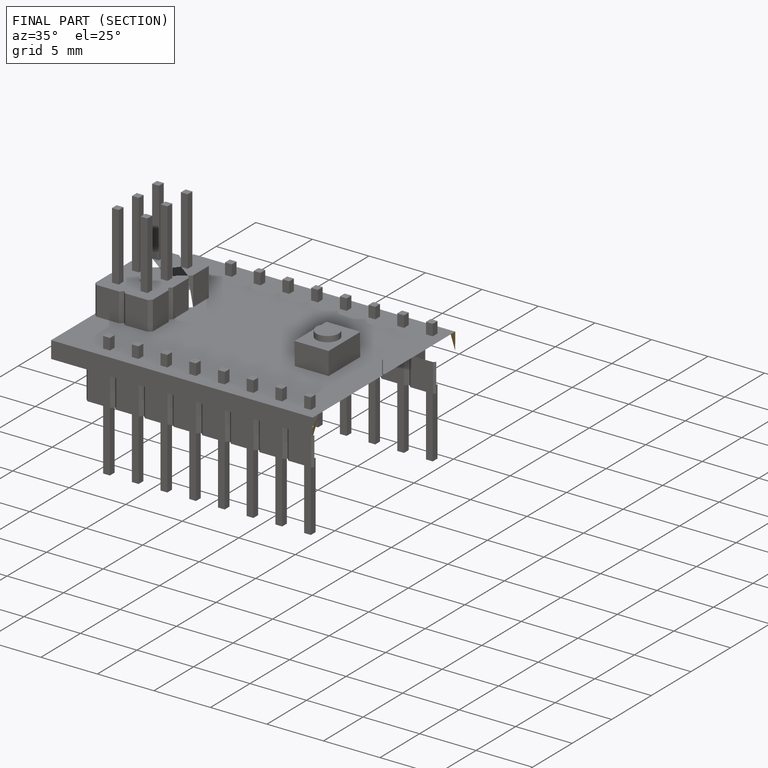
[diagram: finished part — half-section view (interior)]
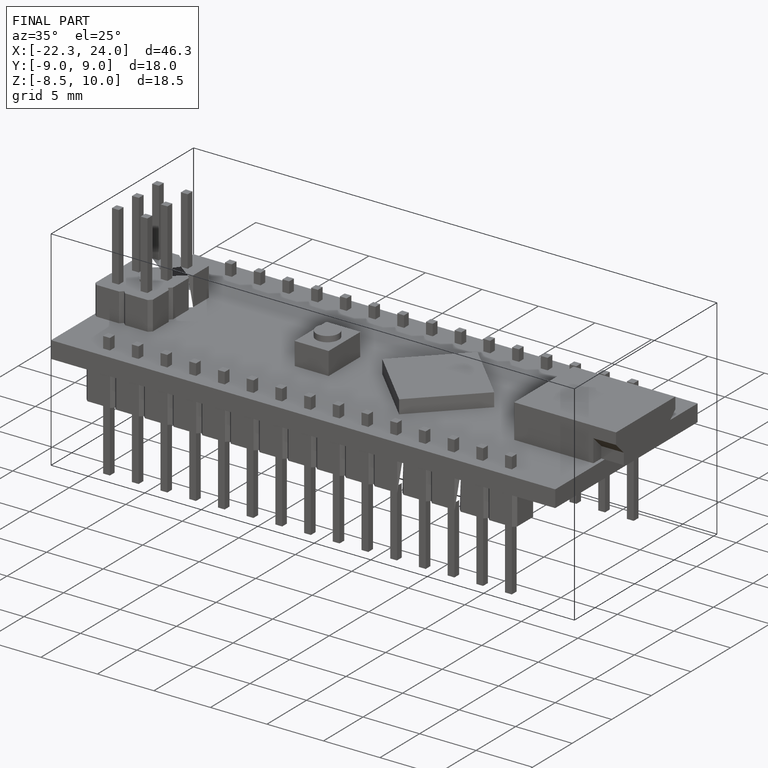
[diagram: finished part — iso view with bounding-box wireframe]
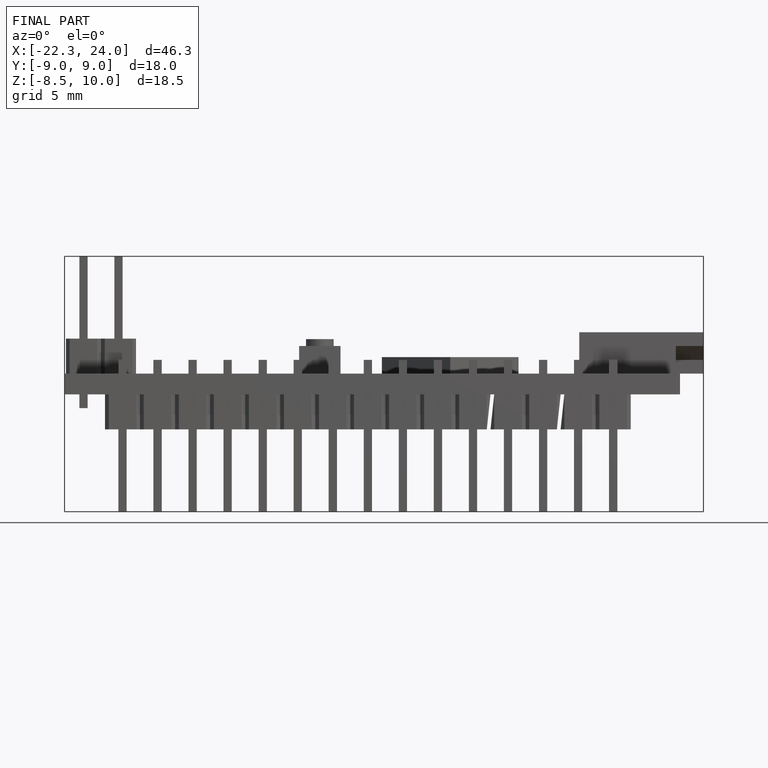
[diagram: finished part — front view with bounding-box wireframe]
